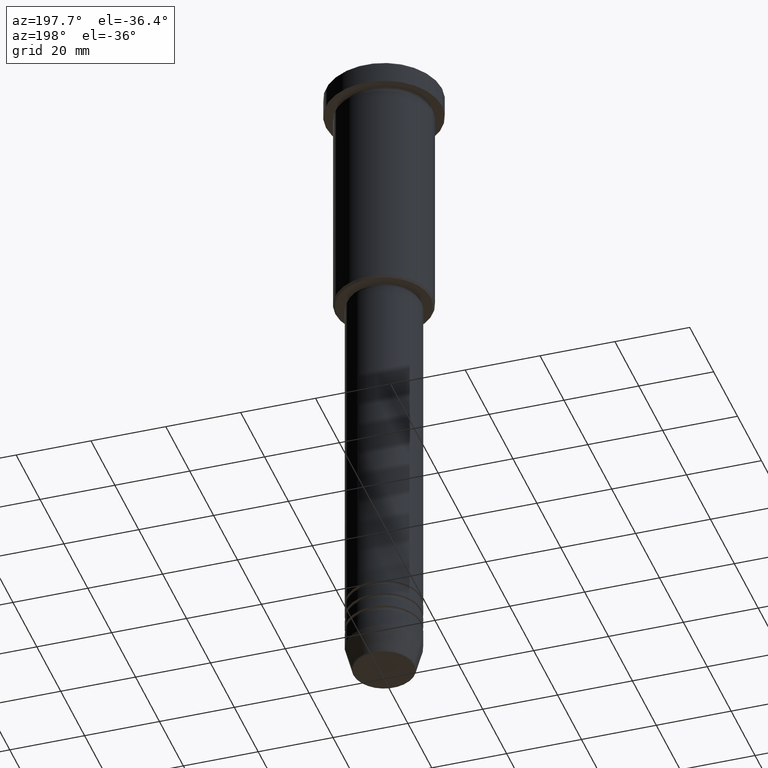
[diagram: clean part render]
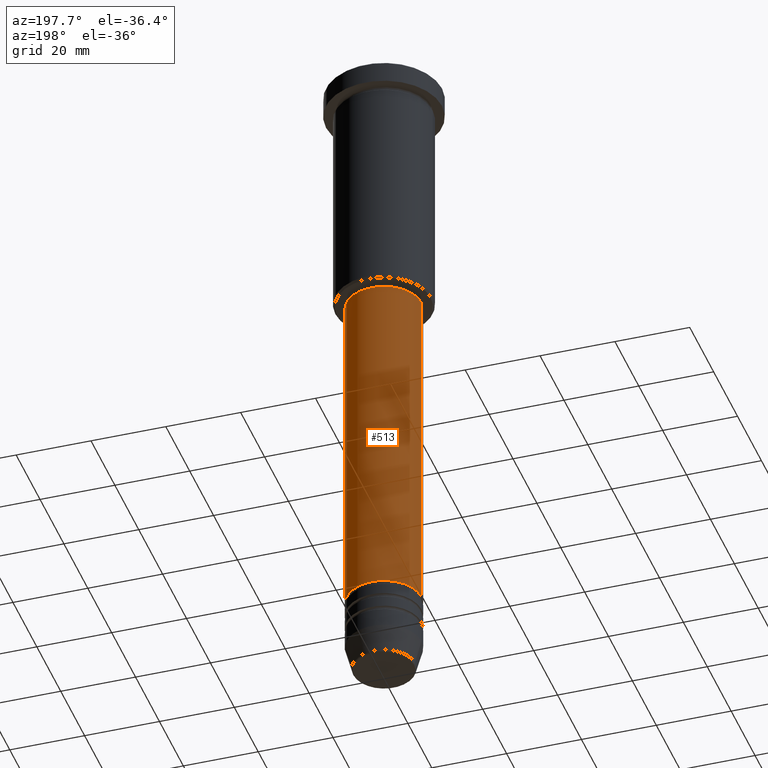
[diagram: same view with one face highlighted and labeled with its STEP entity id]
A machine part, auxiliary view. The second image highlights one B-rep face of the part: STEP entity #513.
In plain terms, the highlighted cylindrical surface (partial cylindrical patch) has radius 10 mm, axis along (-0, -0, 1).
Its self-contained STEP definition (entity closure, byte-faithful):
#4 = LINE ( 'NONE', #834, #441 ) ;
#14 = DIRECTION ( 'NONE',  ( -0.000000000000000000, -0.000000000000000000, 1.000000000000000000 ) ) ;
#93 = VERTEX_POINT ( 'NONE', #207 ) ;
#118 = AXIS2_PLACEMENT_3D ( 'NONE', #945, #123, #1045 ) ;
#123 = DIRECTION ( 'NONE',  ( -0.000000000000000000, -0.000000000000000000, 1.000000000000000000 ) ) ;
#171 = AXIS2_PLACEMENT_3D ( 'NONE', #752, #14, #385 ) ;
#201 = VERTEX_POINT ( 'NONE', #389 ) ;
#207 = CARTESIAN_POINT ( 'NONE',  ( -10.00000000000000178, 1.224646799147353454E-15, -159.9999999999998579 ) ) ;
#222 = EDGE_CURVE ( 'NONE', #201, #778, #4, .T. ) ;
#261 = EDGE_CURVE ( 'NONE', #778, #960, #404, .T. ) ;
#276 = DIRECTION ( 'NONE',  ( -0.000000000000000000, -0.000000000000000000, 1.000000000000000000 ) ) ;
#385 = DIRECTION ( 'NONE',  ( 1.000000000000000000, 0.000000000000000000, 0.000000000000000000 ) ) ;
#389 = CARTESIAN_POINT ( 'NONE',  ( 10.00000000000000178, 0.000000000000000000, -159.9999999999998579 ) ) ;
#400 = FACE_OUTER_BOUND ( 'NONE', #547, .T. ) ;
#404 = CIRCLE ( 'NONE', #1159, 9.999999999999998224 ) ;
#410 = CYLINDRICAL_SURFACE ( 'NONE', #118, 10.00000000000000000 ) ;
#441 = VECTOR ( 'NONE', #276, 1000.000000000000000 ) ;
#466 = ORIENTED_EDGE ( 'NONE', *, *, #815, .T. ) ;
#513 = ADVANCED_FACE ( 'NONE', ( #400 ), #410, .T. ) ;
#547 = EDGE_LOOP ( 'NONE', ( #466, #699, #567, #995 ) ) ;
#567 = ORIENTED_EDGE ( 'NONE', *, *, #261, .F. ) ;
#578 = DIRECTION ( 'NONE',  ( 1.000000000000000000, 0.000000000000000000, 0.000000000000000000 ) ) ;
#658 = LINE ( 'NONE', #738, #893 ) ;
#663 = DIRECTION ( 'NONE',  ( -0.000000000000000000, -0.000000000000000000, 1.000000000000000000 ) ) ;
#699 = ORIENTED_EDGE ( 'NONE', *, *, #772, .T. ) ;
#735 = CARTESIAN_POINT ( 'NONE',  ( 0.000000000000000000, 0.000000000000000000, -66.99999999999997158 ) ) ;
#738 = CARTESIAN_POINT ( 'NONE',  ( -10.00000000000000000, 1.224646799147353256E-15, 0.000000000000000000 ) ) ;
#747 = CIRCLE ( 'NONE', #171, 10.00000000000000178 ) ;
#752 = CARTESIAN_POINT ( 'NONE',  ( 0.000000000000000000, 0.000000000000000000, -159.9999999999998579 ) ) ;
#765 = CARTESIAN_POINT ( 'NONE',  ( -9.999999999999998224, 1.224646799147353256E-15, -66.99999999999997158 ) ) ;
#772 = EDGE_CURVE ( 'NONE', #93, #960, #658, .T. ) ;
#778 = VERTEX_POINT ( 'NONE', #993 ) ;
#815 = EDGE_CURVE ( 'NONE', #201, #93, #747, .T. ) ;
#834 = CARTESIAN_POINT ( 'NONE',  ( 10.00000000000000000, 0.000000000000000000, 0.000000000000000000 ) ) ;
#893 = VECTOR ( 'NONE', #1012, 1000.000000000000000 ) ;
#945 = CARTESIAN_POINT ( 'NONE',  ( 0.000000000000000000, 0.000000000000000000, 0.000000000000000000 ) ) ;
#960 = VERTEX_POINT ( 'NONE', #765 ) ;
#993 = CARTESIAN_POINT ( 'NONE',  ( 9.999999999999998224, 0.000000000000000000, -66.99999999999997158 ) ) ;
#995 = ORIENTED_EDGE ( 'NONE', *, *, #222, .F. ) ;
#1012 = DIRECTION ( 'NONE',  ( -0.000000000000000000, -0.000000000000000000, 1.000000000000000000 ) ) ;
#1045 = DIRECTION ( 'NONE',  ( 1.000000000000000000, 0.000000000000000000, 0.000000000000000000 ) ) ;
#1159 = AXIS2_PLACEMENT_3D ( 'NONE', #735, #663, #578 ) ;